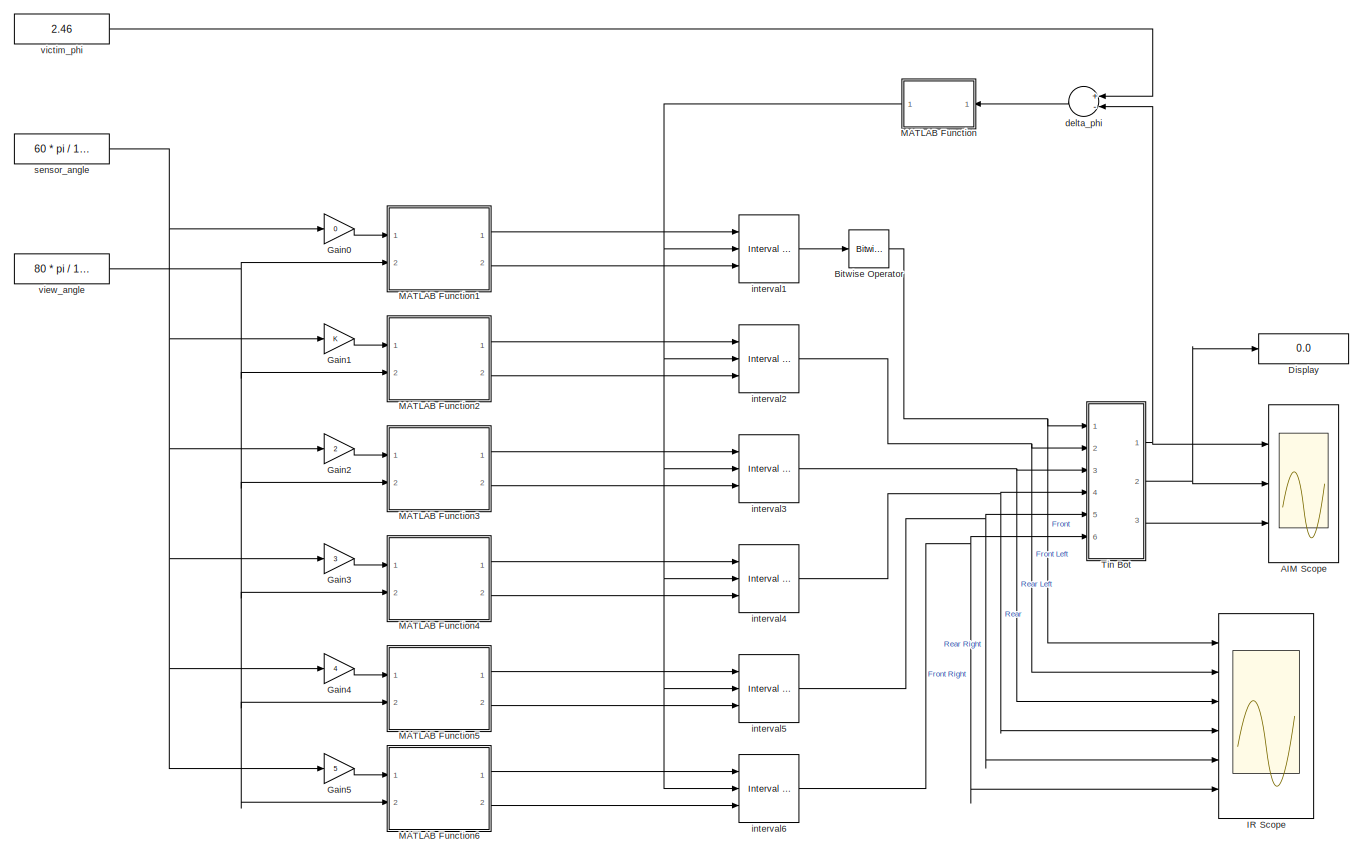
[diagram: root canvas - part 1/1, most of the canvas]
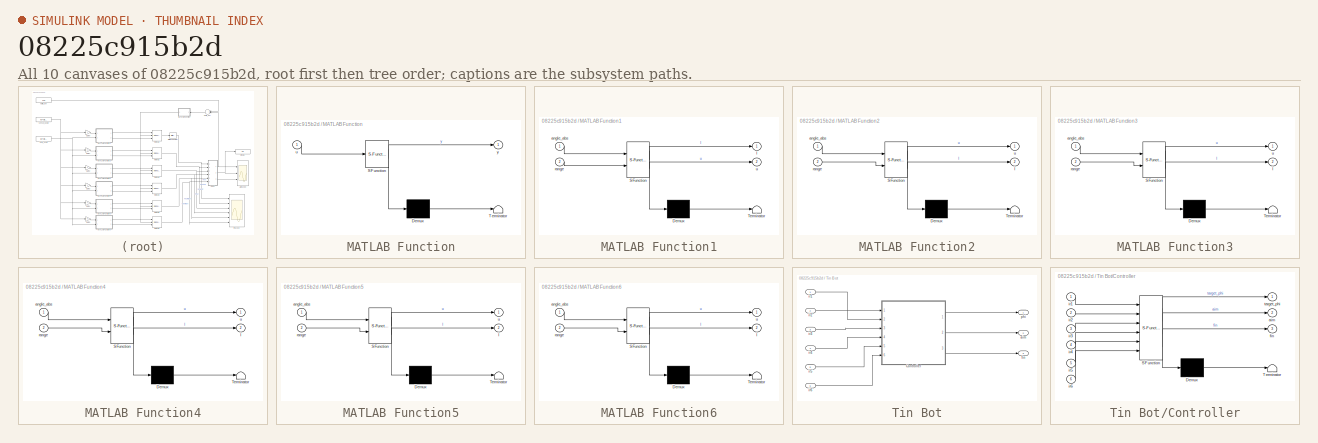
[diagram: thumbnail index - all 10 canvases of the model, root first then tree order]
MODEL slx_08225c915b2d
KIND model
CONFIG AbsTol = auto
CONFIG FixedStep = 0.0001
CONFIG MaxStep = auto
CONFIG MinStep = auto
CONFIG RelTol = 1e-3
CONFIG SampleTimeConstraint = Unconstrained
CONFIG Solver = FixedStepAuto
CONFIG SolverMode = Auto
CONFIG SolverName = FixedStepAuto
CONFIG StartTime = 0.0
CONFIG StopTime = 20
BLOCK [Scope] AIM Scope
  NumInputPorts = 3
  Ports = [3]
  ScopeSpecificationString = Simulink.scopes.TimeScopeBlockCfg('CurrentConfiguration', extmgr.ConfigurationSet(extmgr.Configuration('Core','General UI',true),extmgr.Configuration('Core','Source UI',true),extmgr.Configuration('Sources','WiredSimulink',true,'DataLoggingSaveFormat','Array','DataLoggingDecimation','1','DataLoggingDecimateData',true),extmgr.Configuration('Visuals','Time Domain',true,'SerializedDisplays',{struct('M...<+2791ch>
BLOCK [Reference] Bitwise Operator  REF=simulink/Logic and Bit
Operations/Bitwise
Operator
  Ports = [1, 1]
  SourceBlock = simulink/Logic and Bit\nOperations/Bitwise\nOperator
  SourceType = Bitwise Operator
BLOCK [Display] Display
  Decimation = 1
  Ports = [1]
BLOCK [Gain] Gain0
  Gain = 0
  OutDataTypeStr = Inherit: Inherit via internal rule
  ParamDataTypeStr = Inherit: Inherit via internal rule
  SaturateOnIntegerOverflow = off
BLOCK [Gain] Gain1
  OutDataTypeStr = Inherit: Inherit via internal rule
  ParamDataTypeStr = Inherit: Inherit via internal rule
  SaturateOnIntegerOverflow = off
BLOCK [Gain] Gain2
  Gain = 2
  OutDataTypeStr = Inherit: Inherit via internal rule
  ParamDataTypeStr = Inherit: Inherit via internal rule
  SaturateOnIntegerOverflow = off
BLOCK [Gain] Gain3
  Gain = 3
  OutDataTypeStr = Inherit: Inherit via internal rule
  ParamDataTypeStr = Inherit: Inherit via internal rule
  SaturateOnIntegerOverflow = off
BLOCK [Gain] Gain4
  Gain = 4
  OutDataTypeStr = Inherit: Inherit via internal rule
  ParamDataTypeStr = Inherit: Inherit via internal rule
  SaturateOnIntegerOverflow = off
BLOCK [Gain] Gain5
  Gain = 5
  OutDataTypeStr = Inherit: Inherit via internal rule
  ParamDataTypeStr = Inherit: Inherit via internal rule
  SaturateOnIntegerOverflow = off
BLOCK [Scope] IR Scope
  NumInputPorts = 6
  Ports = [6]
  ScopeSpecificationString = Simulink.scopes.TimeScopeBlockCfg('CurrentConfiguration', extmgr.ConfigurationSet(extmgr.Configuration('Core','General UI',true),extmgr.Configuration('Core','Source UI',true),extmgr.Configuration('Sources','WiredSimulink',true,'DataLoggingVariableName','ScopeData1'),extmgr.Configuration('Visuals','Time Domain',true,'SerializedDisplays',{struct('MinYLimReal','-0.125','MaxYLimReal','1.125','YLabelRe...<+4835ch>
BLOCK [SubSystem] MATLAB Function
  ErrorFcn = Stateflow.Translate.translate
  PermitHierarchicalResolution = ExplicitOnly
  Ports = [1, 1]
  RequestExecContextInheritance = off
  SFBlockType = MATLAB Function
  TreatAsAtomicUnit = on
  Variant = off
BLOCK [Demux] MATLAB Function/ Demux 
  Outputs = 1
  Ports = [1, 1]
BLOCK [S-Function] MATLAB Function/ SFunction 
  EnableBusSupport = on
  FunctionName = sf_sfun
  PortCounts = [1 2]
  Ports = [1, 2]
  SFunctionDeploymentMode = off
  Tag = Stateflow S-Function ir_info_sim 2
BLOCK [Terminator] MATLAB Function/ Terminator 
BLOCK [Inport] MATLAB Function/u
  IconDisplay = Port number
BLOCK [Outport] MATLAB Function/y
  IconDisplay = Port number
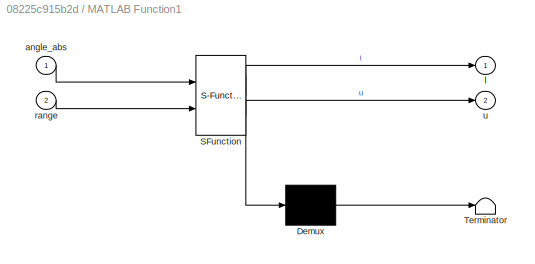
BLOCK [SubSystem] MATLAB Function1
  ErrorFcn = Stateflow.Translate.translate
  PermitHierarchicalResolution = ExplicitOnly
  Ports = [2, 2]
  RequestExecContextInheritance = off
  SFBlockType = MATLAB Function
  TreatAsAtomicUnit = on
  Variant = off
BLOCK [Demux] MATLAB Function1/ Demux 
  Outputs = 1
  Ports = [1, 1]
BLOCK [S-Function] MATLAB Function1/ SFunction 
  EnableBusSupport = on
  FunctionName = sf_sfun
  PortCounts = [2 3]
  Ports = [2, 3]
  SFunctionDeploymentMode = off
  Tag = Stateflow S-Function ir_info_sim 1
BLOCK [Terminator] MATLAB Function1/ Terminator 
BLOCK [Inport] MATLAB Function1/angle_abs
  IconDisplay = Port number
BLOCK [Outport] MATLAB Function1/l
  IconDisplay = Port number
BLOCK [Inport] MATLAB Function1/range
  IconDisplay = Port number
  Port = 2
BLOCK [Outport] MATLAB Function1/u
  IconDisplay = Port number
  Port = 2
BLOCK [SubSystem] MATLAB Function2
  ErrorFcn = Stateflow.Translate.translate
  PermitHierarchicalResolution = ExplicitOnly
  Ports = [2, 2]
  RequestExecContextInheritance = off
  SFBlockType = MATLAB Function
  TreatAsAtomicUnit = on
  Variant = off
BLOCK [Demux] MATLAB Function2/ Demux 
  Outputs = 1
  Ports = [1, 1]
BLOCK [S-Function] MATLAB Function2/ SFunction 
  EnableBusSupport = on
  FunctionName = sf_sfun
  PortCounts = [2 3]
  Ports = [2, 3]
  SFunctionDeploymentMode = off
  Tag = Stateflow S-Function ir_info_sim 3
BLOCK [Terminator] MATLAB Function2/ Terminator 
BLOCK [Inport] MATLAB Function2/angle_abs
  IconDisplay = Port number
BLOCK [Outport] MATLAB Function2/l
  IconDisplay = Port number
  Port = 2
BLOCK [Inport] MATLAB Function2/range
  IconDisplay = Port number
  Port = 2
BLOCK [Outport] MATLAB Function2/u
  IconDisplay = Port number
BLOCK [SubSystem] MATLAB Function3
  ErrorFcn = Stateflow.Translate.translate
  PermitHierarchicalResolution = ExplicitOnly
  Ports = [2, 2]
  RequestExecContextInheritance = off
  SFBlockType = MATLAB Function
  TreatAsAtomicUnit = on
  Variant = off
BLOCK [Demux] MATLAB Function3/ Demux 
  Outputs = 1
  Ports = [1, 1]
BLOCK [S-Function] MATLAB Function3/ SFunction 
  EnableBusSupport = on
  FunctionName = sf_sfun
  PortCounts = [2 3]
  Ports = [2, 3]
  SFunctionDeploymentMode = off
  Tag = Stateflow S-Function ir_info_sim 4
BLOCK [Terminator] MATLAB Function3/ Terminator 
BLOCK [Inport] MATLAB Function3/angle_abs
  IconDisplay = Port number
BLOCK [Outport] MATLAB Function3/l
  IconDisplay = Port number
  Port = 2
BLOCK [Inport] MATLAB Function3/range
  IconDisplay = Port number
  Port = 2
BLOCK [Outport] MATLAB Function3/u
  IconDisplay = Port number
BLOCK [SubSystem] MATLAB Function4
  ErrorFcn = Stateflow.Translate.translate
  PermitHierarchicalResolution = ExplicitOnly
  Ports = [2, 2]
  RequestExecContextInheritance = off
  SFBlockType = MATLAB Function
  TreatAsAtomicUnit = on
  Variant = off
BLOCK [Demux] MATLAB Function4/ Demux 
  Outputs = 1
  Ports = [1, 1]
BLOCK [S-Function] MATLAB Function4/ SFunction 
  EnableBusSupport = on
  FunctionName = sf_sfun
  PortCounts = [2 3]
  Ports = [2, 3]
  SFunctionDeploymentMode = off
  Tag = Stateflow S-Function ir_info_sim 5
BLOCK [Terminator] MATLAB Function4/ Terminator 
BLOCK [Inport] MATLAB Function4/angle_abs
  IconDisplay = Port number
BLOCK [Outport] MATLAB Function4/l
  IconDisplay = Port number
  Port = 2
BLOCK [Inport] MATLAB Function4/range
  IconDisplay = Port number
  Port = 2
BLOCK [Outport] MATLAB Function4/u
  IconDisplay = Port number
BLOCK [SubSystem] MATLAB Function5
  ErrorFcn = Stateflow.Translate.translate
  PermitHierarchicalResolution = ExplicitOnly
  Ports = [2, 2]
  RequestExecContextInheritance = off
  SFBlockType = MATLAB Function
  TreatAsAtomicUnit = on
  Variant = off
BLOCK [Demux] MATLAB Function5/ Demux 
  Outputs = 1
  Ports = [1, 1]
BLOCK [S-Function] MATLAB Function5/ SFunction 
  EnableBusSupport = on
  FunctionName = sf_sfun
  PortCounts = [2 3]
  Ports = [2, 3]
  SFunctionDeploymentMode = off
  Tag = Stateflow S-Function ir_info_sim 6
BLOCK [Terminator] MATLAB Function5/ Terminator 
BLOCK [Inport] MATLAB Function5/angle_abs
  IconDisplay = Port number
BLOCK [Outport] MATLAB Function5/l
  IconDisplay = Port number
  Port = 2
BLOCK [Inport] MATLAB Function5/range
  IconDisplay = Port number
  Port = 2
BLOCK [Outport] MATLAB Function5/u
  IconDisplay = Port number
BLOCK [SubSystem] MATLAB Function6
  ErrorFcn = Stateflow.Translate.translate
  PermitHierarchicalResolution = ExplicitOnly
  Ports = [2, 2]
  RequestExecContextInheritance = off
  SFBlockType = MATLAB Function
  TreatAsAtomicUnit = on
  Variant = off
BLOCK [Demux] MATLAB Function6/ Demux 
  Outputs = 1
  Ports = [1, 1]
BLOCK [S-Function] MATLAB Function6/ SFunction 
  EnableBusSupport = on
  FunctionName = sf_sfun
  PortCounts = [2 3]
  Ports = [2, 3]
  SFunctionDeploymentMode = off
  Tag = Stateflow S-Function ir_info_sim 7
BLOCK [Terminator] MATLAB Function6/ Terminator 
BLOCK [Inport] MATLAB Function6/angle_abs
  IconDisplay = Port number
BLOCK [Outport] MATLAB Function6/l
  IconDisplay = Port number
  Port = 2
BLOCK [Inport] MATLAB Function6/range
  IconDisplay = Port number
  Port = 2
BLOCK [Outport] MATLAB Function6/u
  IconDisplay = Port number
BLOCK [SubSystem] Tin Bot
  Ports = [6, 3]
  RequestExecContextInheritance = off
  Variant = off
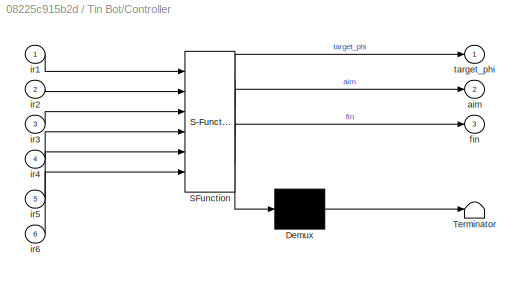
BLOCK [SubSystem] Tin Bot/Controller
  ErrorFcn = Stateflow.Translate.translate
  PermitHierarchicalResolution = ExplicitOnly
  Ports = [6, 3]
  RequestExecContextInheritance = off
  SFBlockType = Chart
  TreatAsAtomicUnit = on
  Variant = off
BLOCK [Demux] Tin Bot/Controller/ Demux 
  Outputs = 1
  Ports = [1, 1]
BLOCK [S-Function] Tin Bot/Controller/ SFunction 
  EnableBusSupport = on
  FunctionName = sf_sfun
  PortCounts = [6 4]
  Ports = [6, 4]
  SFunctionDeploymentMode = off
  Tag = Stateflow S-Function ir_info_sim 8
BLOCK [Terminator] Tin Bot/Controller/ Terminator 
BLOCK [Outport] Tin Bot/Controller/aim
  IconDisplay = Port number
  Port = 2
BLOCK [Outport] Tin Bot/Controller/fin
  IconDisplay = Port number
  Port = 3
BLOCK [Inport] Tin Bot/Controller/ir1
  IconDisplay = Port number
BLOCK [Inport] Tin Bot/Controller/ir2
  IconDisplay = Port number
  Port = 2
BLOCK [Inport] Tin Bot/Controller/ir3
  IconDisplay = Port number
  Port = 3
BLOCK [Inport] Tin Bot/Controller/ir4
  IconDisplay = Port number
  Port = 4
BLOCK [Inport] Tin Bot/Controller/ir5
  IconDisplay = Port number
  Port = 5
BLOCK [Inport] Tin Bot/Controller/ir6
  IconDisplay = Port number
  Port = 6
BLOCK [Outport] Tin Bot/Controller/target_phi
  IconDisplay = Port number
BLOCK [Outport] Tin Bot/aim
  IconDisplay = Port number
  Port = 2
BLOCK [Outport] Tin Bot/fin
  IconDisplay = Port number
  Port = 3
BLOCK [Inport] Tin Bot/ir1
  IconDisplay = Port number
BLOCK [Inport] Tin Bot/ir2
  IconDisplay = Port number
  Port = 2
BLOCK [Inport] Tin Bot/ir3
  IconDisplay = Port number
  Port = 3
BLOCK [Inport] Tin Bot/ir4
  IconDisplay = Port number
  Port = 4
BLOCK [Inport] Tin Bot/ir5
  IconDisplay = Port number
  Port = 5
BLOCK [Inport] Tin Bot/ir6
  IconDisplay = Port number
  Port = 6
BLOCK [Outport] Tin Bot/phi
  IconDisplay = Port number
BLOCK [Sum] delta_phi
  InputSameDT = off
  Inputs = +-
  OutDataTypeStr = Inherit: Inherit via internal rule
  Ports = [2, 1]
  SaturateOnIntegerOverflow = off
BLOCK [Reference] interval1  REF=simulink/Logic and Bit
Operations/Interval Test
Dynamic
  Ports = [3, 1]
  SourceBlock = simulink/Logic and Bit\nOperations/Interval Test\nDynamic
  SourceType = Interval Test Dynamic
BLOCK [Reference] interval2  REF=simulink/Logic and Bit
Operations/Interval Test
Dynamic
  Ports = [3, 1]
  SourceBlock = simulink/Logic and Bit\nOperations/Interval Test\nDynamic
  SourceType = Interval Test Dynamic
BLOCK [Reference] interval3  REF=simulink/Logic and Bit
Operations/Interval Test
Dynamic
  Ports = [3, 1]
  SourceBlock = simulink/Logic and Bit\nOperations/Interval Test\nDynamic
  SourceType = Interval Test Dynamic
BLOCK [Reference] interval4  REF=simulink/Logic and Bit
Operations/Interval Test
Dynamic
  Ports = [3, 1]
  SourceBlock = simulink/Logic and Bit\nOperations/Interval Test\nDynamic
  SourceType = Interval Test Dynamic
BLOCK [Reference] interval5  REF=simulink/Logic and Bit
Operations/Interval Test
Dynamic
  Ports = [3, 1]
  SourceBlock = simulink/Logic and Bit\nOperations/Interval Test\nDynamic
  SourceType = Interval Test Dynamic
BLOCK [Reference] interval6  REF=simulink/Logic and Bit
Operations/Interval Test
Dynamic
  Ports = [3, 1]
  SourceBlock = simulink/Logic and Bit\nOperations/Interval Test\nDynamic
  SourceType = Interval Test Dynamic
BLOCK [Constant] sensor_angle
  Value = 60 * pi / 180
BLOCK [Constant] victim_phi
  Value = 2.46
BLOCK [Constant] view_angle
  Value = 80 * pi / 180
NET Bitwise Operator:1 -> IR Scope:1, Tin Bot:1
LINE Gain0:1 -> MATLAB Function1:1
LINE Gain1:1 -> MATLAB Function2:1
LINE Gain2:1 -> MATLAB Function3:1
LINE Gain3:1 -> MATLAB Function4:1
LINE Gain4:1 -> MATLAB Function5:1
LINE Gain5:1 -> MATLAB Function6:1
LINE MATLAB Function1:1 -> interval1:1
LINE MATLAB Function1:2 -> interval1:3
LINE MATLAB Function2:1 -> interval2:1
LINE MATLAB Function2:2 -> interval2:3
LINE MATLAB Function3:1 -> interval3:1
LINE MATLAB Function3:2 -> interval3:3
LINE MATLAB Function4:1 -> interval4:1
LINE MATLAB Function4:2 -> interval4:3
LINE MATLAB Function5:1 -> interval5:1
LINE MATLAB Function5:2 -> interval5:3
LINE MATLAB Function6:1 -> interval6:1
LINE MATLAB Function6:2 -> interval6:3
NET MATLAB Function:1 -> interval1:2, interval2:2, interval3:2, interval4:2, interval5:2, interval6:2
LINE Tin Bot/Controller:1 -> Tin Bot/phi:1
LINE Tin Bot/Controller:2 -> Tin Bot/aim:1
LINE Tin Bot/Controller:3 -> Tin Bot/fin:1
LINE Tin Bot/ir1:1 -> Tin Bot/Controller:1
LINE Tin Bot/ir2:1 -> Tin Bot/Controller:2
LINE Tin Bot/ir3:1 -> Tin Bot/Controller:3
LINE Tin Bot/ir4:1 -> Tin Bot/Controller:4
LINE Tin Bot/ir5:1 -> Tin Bot/Controller:5
LINE Tin Bot/ir6:1 -> Tin Bot/Controller:6
NET Tin Bot:1 -> AIM Scope:1, delta_phi:2
NET Tin Bot:2 -> AIM Scope:2, Display:1
LINE Tin Bot:3 -> AIM Scope:3
LINE delta_phi:1 -> MATLAB Function:1
LINE interval1:1 -> Bitwise Operator:1
NET interval2:1 -> IR Scope:2, Tin Bot:2
NET interval3:1 -> IR Scope:3, Tin Bot:3
NET interval4:1 -> IR Scope:4, Tin Bot:4
NET interval5:1 -> IR Scope:5, Tin Bot:5
NET interval6:1 -> IR Scope:6, Tin Bot:6
NET sensor_angle:1 -> Gain0:1, Gain1:1, Gain2:1, Gain3:1, Gain4:1, Gain5:1
LINE victim_phi:1 -> delta_phi:1
NET view_angle:1 -> MATLAB Function1:2, MATLAB Function2:2, MATLAB Function3:2, MATLAB Function4:2, MATLAB Function5:2, MATLAB Function6:2
note: NET lines group one-source signal fan-out (src -> all destinations, sorted); 1:1 wires keep LINE
CHART MATLAB Function1 states=1 transitions=1
  STATE_LABEL 'eML_blk_kernel()'
  STATE_LABEL 'SCRIPT:\nfunction [l, u] = fnc(angle_abs, range)\n    l = mod(angle_abs-range/2, 2*pi);\n    u = mod(angle_abs+range/2, 2*pi);    \nend'
CHART MATLAB Function states=1 transitions=1
  STATE_LABEL 'eML_blk_kernel()'
  STATE_LABEL 'SCRIPT:\nfunction y = mod(u)\n    y = mod(u, 2*pi);\nend'
CHART MATLAB Function2 states=1 transitions=1
  STATE_LABEL 'eML_blk_kernel()'
  STATE_LABEL 'SCRIPT:\nfunction [u, l] = fnc(angle_abs, range)\n    u = mod(angle_abs+range/2, 2*pi);\n    l = mod(angle_abs-range/2, 2*pi);\nend'
CHART MATLAB Function3 states=1 transitions=1
  STATE_LABEL 'eML_blk_kernel()'
  STATE_LABEL 'SCRIPT:\nfunction [u, l] = fnc(angle_abs, range)\n    u = mod(angle_abs+range/2, 2*pi);\n    l = mod(angle_abs-range/2, 2*pi);\nend'
CHART MATLAB Function4 states=1 transitions=1
  STATE_LABEL 'eML_blk_kernel()'
  STATE_LABEL 'SCRIPT:\nfunction [u, l] = fnc(angle_abs, range)\n    u = mod(angle_abs+range/2, 2*pi);\n    l = mod(angle_abs-range/2, 2*pi);\nend'
CHART MATLAB Function5 states=1 transitions=1
  STATE_LABEL 'eML_blk_kernel()'
  STATE_LABEL 'SCRIPT:\nfunction [u, l] = fnc(angle_abs, range)\n    u = mod(angle_abs+range/2, 2*pi);\n    l = mod(angle_abs-range/2, 2*pi);\nend'
CHART MATLAB Function6 states=1 transitions=1
  STATE_LABEL 'eML_blk_kernel()'
  STATE_LABEL 'SCRIPT:\nfunction [u, l] = fnc(angle_abs, range)\n    u = mod(angle_abs+range/2, 2*pi);\n    l = mod(angle_abs-range/2, 2*pi);\nend'
CHART Tin Bot/Controller states=15 transitions=32
  STATE_LABEL 'Init'
  STATE_LABEL 'Start'
  STATE_LABEL 'IR1_05\n'
  STATE_LABEL 'IR1_04\n'
  STATE_LABEL 'IR1_03\n'
  STATE_LABEL 'IR1_02\n'
  STATE_LABEL 'IR2_0\n'
  STATE_LABEL 'IR1_0\n'
  STATE_LABEL 'IR1_6'
  STATE_LABEL 'IR1_5'
  STATE_LABEL 'IR1_4'
  STATE_LABEL 'IR2_1'
  STATE_LABEL 'IR3_3'
  STATE_LABEL 'IR1_1'
  STATE_LABEL 'FIN\nentry:\naim = mod(bound1 + mod(bound2 - bound1, 2 * pi) / 2, 2 * pi)\nfin = 1'
